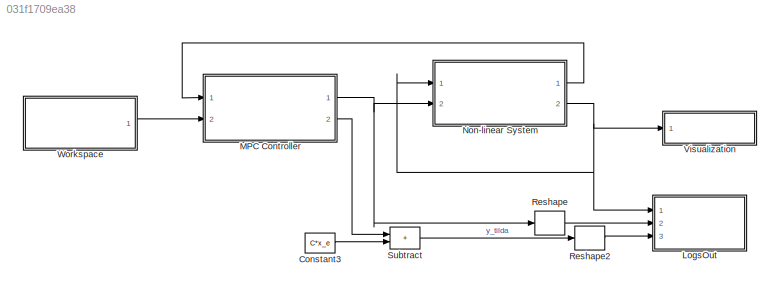
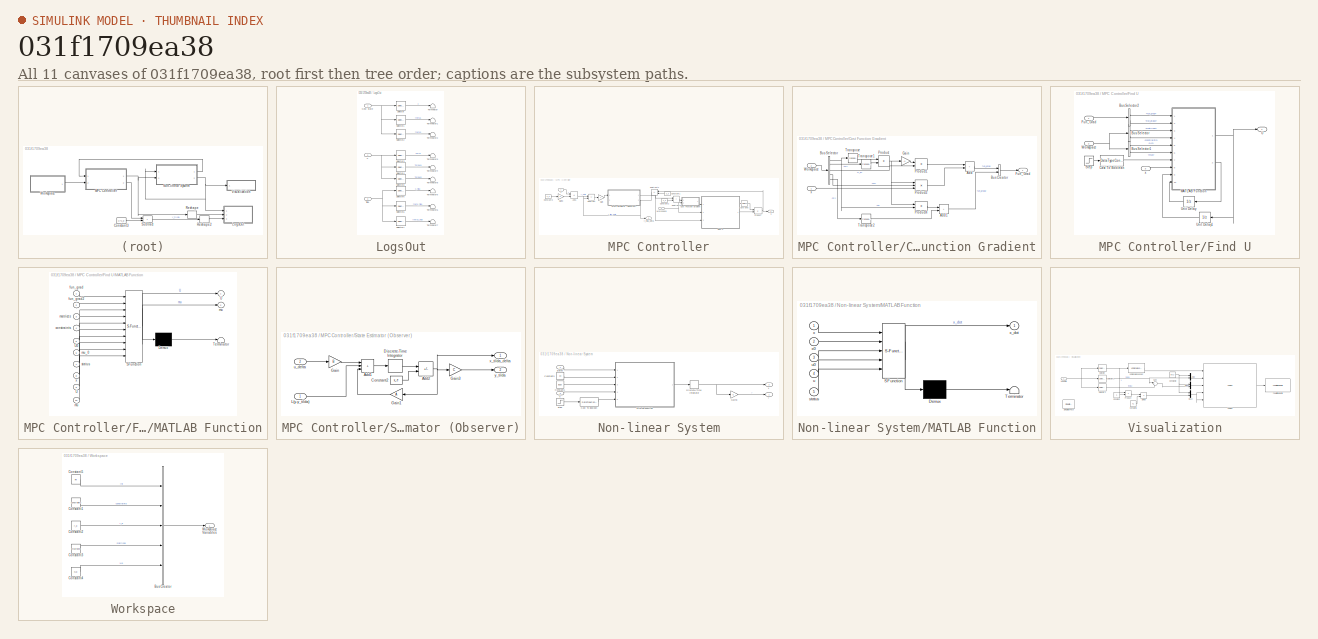
[diagram: thumbnail index - all 11 canvases of the model, root first then tree order]
MODEL slx_031f1709ea38
KIND model
CONFIG AbsTol = auto
CONFIG EnableMultiTasking = off
CONFIG FixedStep = h
CONFIG MaxStep = auto
CONFIG MinStep = auto
CONFIG RelTol = 1e-3
CONFIG SampleTimeConstraint = Unconstrained
CONFIG SolverName = FixedStepDiscrete
CONFIG StartTime = 0.0
CONFIG StopTime = 10.0
BLOCK [Constant] Constant3
  Value = C*x_e
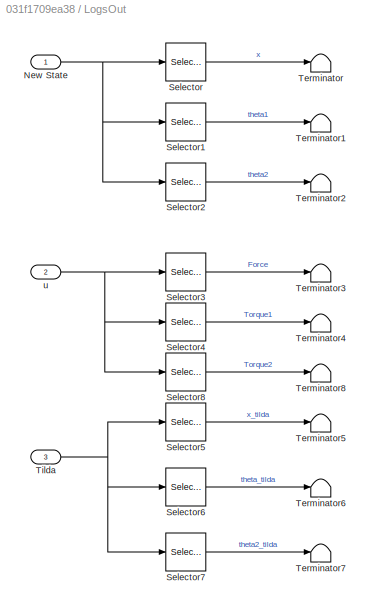
BLOCK [SubSystem] LogsOut
  Ports = [3]
  RequestExecContextInheritance = off
BLOCK [Inport] LogsOut/New State
BLOCK [Selector] LogsOut/Selector
  IndexOptions = Index vector (dialog)
  Indices = 1
  InputPortWidth = 6
  OutputSizes = 1
  Ports = [1, 1]
BLOCK [Selector] LogsOut/Selector1
  IndexOptions = Index vector (dialog)
  Indices = 2
  InputPortWidth = 6
  OutputSizes = 1
  Ports = [1, 1]
BLOCK [Selector] LogsOut/Selector2
  IndexOptions = Index vector (dialog)
  Indices = 3
  InputPortWidth = 6
  OutputSizes = 1
  Ports = [1, 1]
BLOCK [Selector] LogsOut/Selector3
  IndexOptions = Index vector (dialog)
  Indices = 1
  InputPortWidth = 3
  OutputSizes = 1
  Ports = [1, 1]
BLOCK [Selector] LogsOut/Selector4
  IndexOptions = Index vector (dialog)
  Indices = 2
  InputPortWidth = 3
  OutputSizes = 1
  Ports = [1, 1]
BLOCK [Selector] LogsOut/Selector5
  IndexOptions = Index vector (dialog)
  Indices = 1
  InputPortWidth = 3
  OutputSizes = 1
  Ports = [1, 1]
BLOCK [Selector] LogsOut/Selector6
  IndexOptions = Index vector (dialog)
  Indices = 2
  InputPortWidth = 3
  OutputSizes = 1
  Ports = [1, 1]
BLOCK [Selector] LogsOut/Selector7
  IndexOptions = Index vector (dialog)
  Indices = 3
  InputPortWidth = 3
  OutputSizes = 1
  Ports = [1, 1]
BLOCK [Selector] LogsOut/Selector8
  IndexOptions = Index vector (dialog)
  Indices = 3
  InputPortWidth = 3
  OutputSizes = 1
  Ports = [1, 1]
BLOCK [Terminator] LogsOut/Terminator
BLOCK [Terminator] LogsOut/Terminator1
BLOCK [Terminator] LogsOut/Terminator2
BLOCK [Terminator] LogsOut/Terminator3
BLOCK [Terminator] LogsOut/Terminator4
BLOCK [Terminator] LogsOut/Terminator5
BLOCK [Terminator] LogsOut/Terminator6
BLOCK [Terminator] LogsOut/Terminator7
BLOCK [Terminator] LogsOut/Terminator8
BLOCK [Inport] LogsOut/Tilda
  Port = 3
BLOCK [Inport] LogsOut/u
  Port = 2
BLOCK [SubSystem] MPC Controller
  Ports = [2, 2]
  RequestExecContextInheritance = off
BLOCK [Sum] MPC Controller/Add1
  IconShape = rectangular
  Inputs = +-
  Ports = [2, 1]
BLOCK [Constant] MPC Controller/Constant1
  Value = u_e
BLOCK [Constant] MPC Controller/Constant2
  Value = x_e
BLOCK [Constant] MPC Controller/Constant3
  Value = x_e
BLOCK [SubSystem] MPC Controller/Cost Function Gradient
  Ports = [2, 1]
  RequestExecContextInheritance = off
BLOCK [Sum] MPC Controller/Cost Function Gradient/Add
  IconShape = rectangular
  Ports = [2, 1]
BLOCK [Sum] MPC Controller/Cost Function Gradient/Add1
  IconShape = rectangular
  Ports = [2, 1]
BLOCK [BusCreator] MPC Controller/Cost Function Gradient/Bus Creator
  DisplayOption = bar
  InheritFromInputs = on
  Inputs = 2
  Ports = [2, 1]
BLOCK [BusSelector] MPC Controller/Cost Function Gradient/Bus Selector
  OutputSignals = matrices.Z,matrices.Q,r_p,matrices.W,matrices.R
  Ports = [1, 5]
BLOCK [Outport] MPC Controller/Cost Function Gradient/Fun_Grad
BLOCK [Gain] MPC Controller/Cost Function Gradient/Gain
  Gain = -1
BLOCK [Product] MPC Controller/Cost Function Gradient/Product
  Multiplication = Matrix(*)
  Ports = [2, 1]
BLOCK [Product] MPC Controller/Cost Function Gradient/Product1
  Multiplication = Matrix(*)
  Ports = [2, 1]
BLOCK [Product] MPC Controller/Cost Function Gradient/Product2
  Inputs = 3
  Multiplication = Matrix(*)
  Ports = [3, 1]
BLOCK [Product] MPC Controller/Cost Function Gradient/Product4
  Multiplication = Matrix(*)
  Ports = [2, 1]
BLOCK [Math] MPC Controller/Cost Function Gradient/Transpose
  Operator = transpose
  Ports = [1, 1]
BLOCK [Math] MPC Controller/Cost Function Gradient/Transpose1
  Operator = transpose
  Ports = [1, 1]
BLOCK [Math] MPC Controller/Cost Function Gradient/Transpose2
  Operator = transpose
  Ports = [1, 1]
BLOCK [Inport] MPC Controller/Cost Function Gradient/Workspace
  Port = 2
BLOCK [Inport] MPC Controller/Cost Function Gradient/x
BLOCK [SubSystem] MPC Controller/Find U
  Ports = [3, 1]
  RequestExecContextInheritance = off
BLOCK [BusSelector] MPC Controller/Find U/Bus Selector
  OutputSignals = matrices,constraints
  Ports = [1, 2]
BLOCK [BusSelector] MPC Controller/Find U/Bus Selector1
  OutputSignals = int.U0,int.mu0
  Ports = [1, 2]
BLOCK [BusSelector] MPC Controller/Find U/Bus Selector2
  OutputSignals = fun_grad,fun_grad2
  Ports = [1, 2]
BLOCK [DataTypeConversion] MPC Controller/Find U/Cast To Boolean
  OutDataTypeStr = boolean
  RndMeth = Floor
  SaturateOnIntegerOverflow = off
BLOCK [Inport] MPC Controller/Find U/Fun_Grad
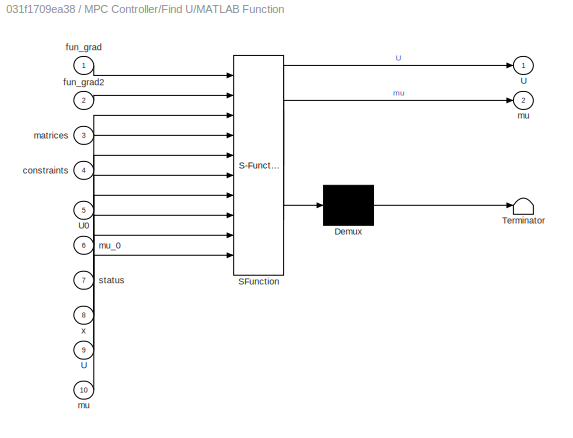
BLOCK [SubSystem] MPC Controller/Find U/MATLAB Function
  ErrorFcn = Stateflow.Translate.translate
  PermitHierarchicalResolution = ExplicitOnly
  Ports = [10, 2]
  RequestExecContextInheritance = off
  SFBlockType = MATLAB Function
  TreatAsAtomicUnit = on
BLOCK [Demux] MPC Controller/Find U/MATLAB Function/ Demux 
  Outputs = 1
  Ports = [1, 1]
BLOCK [S-Function] MPC Controller/Find U/MATLAB Function/ SFunction 
  EnableBusSupport = on
  FunctionName = sf_sfun
  PortCounts = [10 3]
  Ports = [10, 3]
  SFcnIsStateOwnerBlock = off
  SFunctionDeploymentMode = off
  Tag = Stateflow S-Function 1
BLOCK [Terminator] MPC Controller/Find U/MATLAB Function/ Terminator 
BLOCK [Outport] MPC Controller/Find U/MATLAB Function/U
BLOCK [Inport] MPC Controller/Find U/MATLAB Function/U 
  Port = 9
BLOCK [Inport] MPC Controller/Find U/MATLAB Function/U0
  Port = 5
BLOCK [Inport] MPC Controller/Find U/MATLAB Function/constraints
  Port = 4
BLOCK [Inport] MPC Controller/Find U/MATLAB Function/fun_grad
BLOCK [Inport] MPC Controller/Find U/MATLAB Function/fun_grad2
  Port = 2
BLOCK [Inport] MPC Controller/Find U/MATLAB Function/matrices
  Port = 3
BLOCK [Outport] MPC Controller/Find U/MATLAB Function/mu
  Port = 2
BLOCK [Inport] MPC Controller/Find U/MATLAB Function/mu 
  Port = 10
BLOCK [Inport] MPC Controller/Find U/MATLAB Function/mu_0
  Port = 6
BLOCK [Inport] MPC Controller/Find U/MATLAB Function/status
  Port = 7
BLOCK [Inport] MPC Controller/Find U/MATLAB Function/x
  Port = 8
BLOCK [Step] MPC Controller/Find U/Step
  SampleTime = 0
  Time = h-0.001
BLOCK [Outport] MPC Controller/Find U/U
BLOCK [UnitDelay] MPC Controller/Find U/Unit Delay
  HasFrameUpgradeWarning = on
  InitialCondition = int.mu0
  SampleTime = -1
BLOCK [UnitDelay] MPC Controller/Find U/Unit Delay1
  HasFrameUpgradeWarning = on
  InitialCondition = int.U0
  SampleTime = -1
BLOCK [Inport] MPC Controller/Find U/Workspace
  Port = 2
BLOCK [Inport] MPC Controller/Find U/x
  Port = 3
BLOCK [Gain] MPC Controller/Gain
  Gain = L
  Multiplication = Matrix(K*u)
BLOCK [Gain] MPC Controller/Gain3
  Gain = C
  Multiplication = Matrix(K*u)
BLOCK [Product] MPC Controller/Product
  Multiplication = Matrix(*)
  OutDataTypeStr = Inherit: Inherit via back propagation
  Ports = [2, 1]
BLOCK [SubSystem] MPC Controller/State Estimator (Observer)
  PortSchema = {"entries":[{"content":{"sides":[{"content":{"connectorIds":["In1"]},"type":"ConnectorPlacement.EquallySpacedRectSide","uuid":"57453572-00db-41c9-97df-639cc5f0b98d"},{"content":{"connectorIds":["In2","Out1","Out2"],"side":"RIGHT"},"type":"ConnectorPlacement.EquallySpacedRectSide","uuid":"3b8eab05-1f6d-4087-8816-503eb36a27cc"},{"content":{"connectorIds":[],"side":"TOP"},"type":"ConnectorPlacement.E...<+253ch>
  Ports = [2, 2]
  RequestExecContextInheritance = off
BLOCK [Sum] MPC Controller/State Estimator (Observer)/Add1
  IconShape = rectangular
  Inputs = +++
  Ports = [3, 1]
BLOCK [Sum] MPC Controller/State Estimator (Observer)/Add2
  IconShape = rectangular
  Inputs = +-
  Ports = [2, 1]
BLOCK [Constant] MPC Controller/State Estimator (Observer)/Constant2
  Value = x_e
BLOCK [DiscreteIntegrator] MPC Controller/State Estimator (Observer)/Discrete-Time Integrator
  ICPrevOutput = DiscIntNeverNeededParam
  ICPrevScaledInput = DiscIntNeverNeededParam
  InitialCondition = [x0.x;x0.theta1;x0.theta2;x0.x_dot;x0.theta1_dot;x0.theta2_dot]
  InitialConditionSetting = Auto
  Ports = [1, 1]
  SampleTime = h
BLOCK [Gain] MPC Controller/State Estimator (Observer)/Gain
  Gain = B
  Multiplication = Matrix(K*u)
BLOCK [Gain] MPC Controller/State Estimator (Observer)/Gain1
  Gain = A
  Multiplication = Matrix(K*u)
BLOCK [Gain] MPC Controller/State Estimator (Observer)/Gain3
  Gain = C
  Multiplication = Matrix(K*u)
BLOCK [Inport] MPC Controller/State Estimator (Observer)/L(y-y_tilda)
BLOCK [Inport] MPC Controller/State Estimator (Observer)/u_delta
  Port = 2
BLOCK [Outport] MPC Controller/State Estimator (Observer)/x_tilda_delta
BLOCK [Outport] MPC Controller/State Estimator (Observer)/y_tilda
  Port = 2
BLOCK [Sum] MPC Controller/Subtract
  IconShape = rectangular
  Inputs = +-
  Ports = [2, 1]
BLOCK [Sum] MPC Controller/Subtract1
  IconShape = rectangular
  Inputs = +-
  Ports = [2, 1]
BLOCK [Sum] MPC Controller/Subtract2
  IconShape = rectangular
  Ports = [2, 1]
BLOCK [Inport] MPC Controller/Workspace
  Port = 2
BLOCK [Constant] MPC Controller/[Eye one]
  Value = [eye(m) zeros(m,m*Np-m)]
  VectorParams1D = off
BLOCK [Outport] MPC Controller/u
BLOCK [Inport] MPC Controller/y
BLOCK [Outport] MPC Controller/y_tilda_delta
  Port = 2
BLOCK [SubSystem] Non-linear System
  Ports = [2, 2]
  RequestExecContextInheritance = off
BLOCK [DataTypeConversion] Non-linear System/Cast To Boolean
  OutDataTypeStr = boolean
  RndMeth = Floor
  SaturateOnIntegerOverflow = off
BLOCK [Constant] Non-linear System/Constant1
  Value = [0;0;0]
  VectorParams1D = off
BLOCK [Constant] Non-linear System/Constant3
  OutDataTypeStr = Bus: State_bus
  Value = x0
  VectorParams1D = off
BLOCK [DiscreteIntegrator] Non-linear System/Discrete-Time Integrator
  ICPrevOutput = DiscIntNeverNeededParam
  ICPrevScaledInput = DiscIntNeverNeededParam
  InitialCondition = [x0.x;x0.theta1;x0.theta2;x0.x_dot;x0.theta1_dot;x0.theta2_dot]
  InitialConditionSetting = Auto
  Ports = [1, 1]
  SampleTime = h
BLOCK [Gain] Non-linear System/Gain3
  Gain = C
  Multiplication = Matrix(K*u)
BLOCK [SubSystem] Non-linear System/MATLAB Function
  ErrorFcn = Stateflow.Translate.translate
  PermitHierarchicalResolution = ExplicitOnly
  Ports = [5, 1]
  RequestExecContextInheritance = off
  SFBlockType = MATLAB Function
  TreatAsAtomicUnit = on
BLOCK [Demux] Non-linear System/MATLAB Function/ Demux 
  Outputs = 1
  Ports = [1, 1]
BLOCK [S-Function] Non-linear System/MATLAB Function/ SFunction 
  EnableBusSupport = on
  FunctionName = sf_sfun
  PortCounts = [5 2]
  Ports = [5, 2]
  SFcnIsStateOwnerBlock = off
  SFunctionDeploymentMode = off
  Tag = Stateflow S-Function 2
BLOCK [Terminator] Non-linear System/MATLAB Function/ Terminator 
BLOCK [Inport] Non-linear System/MATLAB Function/status
  Port = 5
BLOCK [Inport] Non-linear System/MATLAB Function/u
  Port = 4
BLOCK [Inport] Non-linear System/MATLAB Function/u0
  Port = 3
BLOCK [Inport] Non-linear System/MATLAB Function/x
BLOCK [Inport] Non-linear System/MATLAB Function/x0
  Port = 2
BLOCK [Outport] Non-linear System/MATLAB Function/x_dot
BLOCK [Inport] Non-linear System/States
BLOCK [Step] Non-linear System/Step
  SampleTime = 0
  Time = h
BLOCK [Inport] Non-linear System/u
  Port = 2
BLOCK [Outport] Non-linear System/x
  Port = 2
BLOCK [Outport] Non-linear System/y
BLOCK [Reshape] Reshape
  Ports = [1, 1]
BLOCK [Reshape] Reshape2
  Ports = [1, 1]
BLOCK [Sum] Subtract
  IconShape = rectangular
  Ports = [2, 1]
BLOCK [SubSystem] Visualization
  Ports = [1]
  RequestExecContextInheritance = off
BLOCK [Constant] Visualization/Constant
  Value = -1
BLOCK [Constant] Visualization/Constant1
  Value = 0.1
BLOCK [Constant] Visualization/Constant2
  Value = [0 0 1]
BLOCK [Product] Visualization/Divide
  Inputs = */
  Ports = [2, 1]
BLOCK [Mux] Visualization/Mux
  DisplayOption = bar
  Inputs = 2
  Ports = [2, 1]
BLOCK [Mux] Visualization/Mux1
  DisplayOption = bar
  Inputs = 2
  Ports = [2, 1]
BLOCK [Mux] Visualization/Mux2
  DisplayOption = bar
  Inputs = 2
  Ports = [2, 1]
BLOCK [Inport] Visualization/New State
BLOCK [Product] Visualization/Product
  Ports = [2, 1]
BLOCK [Selector] Visualization/Selector
  IndexOptions = Index vector (dialog)
  Indices = 1
  InputPortWidth = 6
  OutputSizes = 1
  Ports = [1, 1]
BLOCK [Selector] Visualization/Selector1
  IndexOptions = Index vector (dialog)
  Indices = 2
  InputPortWidth = 6
  OutputSizes = 1
  Ports = [1, 1]
BLOCK [Selector] Visualization/Selector2
  IndexOptions = Index vector (dialog)
  Indices = 3
  InputPortWidth = 6
  OutputSizes = 1
  Ports = [1, 1]
BLOCK [Reference] Visualization/Simulation Pace  REF=aerolibanimutils/Simulation Pace
  AttributesFormatString = %<SleepMode>\n%<SimulationPace> sec/sec
  Commented = on
  Ports = []
  SourceBlock = aerolibanimutils/Simulation Pace
  SourceProductBaseCode = AE
  SourceType = Simulation Pace
BLOCK [Sum] Visualization/Sum
  Inputs = |+-
  Ports = [2, 1]
BLOCK [Reference] Visualization/To Multimedia File  REF=dspvision/To Multimedia File
  Ports = [1]
  SourceBlock = dspvision/To Multimedia File
  SourceProductBaseCode = DS,HW,VP
  SourceType = To Multimedia File
BLOCK [Reference] Visualization/VR Signal Expander  REF=vrlib/VR Signal Expander
  Ports = [1, 1]
  SourceBlock = vrlib/VR Signal Expander
  SourceProductBaseCode = SL
  SourceType = VR Signal Expander
BLOCK [Reference] Visualization/VR Sink  REF=vrlib/VR Sink
  InstantiateOnLoad = on
  Ports = [5, 1]
  SourceBlock = vrlib/VR Sink
  SourceProductBaseCode = SL
  SourceType = Virtual Reality Sink
BLOCK [SubSystem] Workspace
  Ports = [0, 1]
  RequestExecContextInheritance = off
BLOCK [BusCreator] Workspace/Bus Creator
  DisplayOption = bar
  InheritFromInputs = on
  Inputs = 5
  Ports = [5, 1]
BLOCK [Constant] Workspace/Constant1
  OutDataTypeStr = Bus: Contraint_bus
  Value = constraints
  VectorParams1D = off
BLOCK [Constant] Workspace/Constant2
  Value = r_p
BLOCK [Constant] Workspace/Constant3
  OutDataTypeStr = Bus: Matrix_bus
  Value = matrices
  VectorParams1D = off
BLOCK [Constant] Workspace/Constant4
  Value = Np
  VectorParams1D = off
BLOCK [Constant] Workspace/Constant5
  OutDataTypeStr = Bus: Initial_bus
  Value = int
  VectorParams1D = off
BLOCK [Outport] Workspace/Workspace Variables
LINE Constant3:1 -> Subtract:2
NET LogsOut/New State:1 -> LogsOut/Selector1:1, LogsOut/Selector2:1, LogsOut/Selector:1
LINE LogsOut/Selector1:1 -> LogsOut/Terminator1:1
LINE LogsOut/Selector2:1 -> LogsOut/Terminator2:1
LINE LogsOut/Selector3:1 -> LogsOut/Terminator3:1
LINE LogsOut/Selector4:1 -> LogsOut/Terminator4:1
LINE LogsOut/Selector5:1 -> LogsOut/Terminator5:1
LINE LogsOut/Selector6:1 -> LogsOut/Terminator6:1
LINE LogsOut/Selector7:1 -> LogsOut/Terminator7:1
LINE LogsOut/Selector8:1 -> LogsOut/Terminator8:1
LINE LogsOut/Selector:1 -> LogsOut/Terminator:1
NET LogsOut/Tilda:1 -> LogsOut/Selector5:1, LogsOut/Selector6:1, LogsOut/Selector7:1
NET LogsOut/u:1 -> LogsOut/Selector3:1, LogsOut/Selector4:1, LogsOut/Selector8:1
LINE MPC Controller/Add1:1 -> MPC Controller/Subtract:1
LINE MPC Controller/Constant1:1 -> MPC Controller/Subtract1:2
LINE MPC Controller/Constant2:1 -> MPC Controller/Subtract2:2
LINE MPC Controller/Constant3:1 -> MPC Controller/Gain3:1
LINE MPC Controller/Cost Function Gradient/Add1:1 -> MPC Controller/Cost Function Gradient/Bus Creator:2
LINE MPC Controller/Cost Function Gradient/Add:1 -> MPC Controller/Cost Function Gradient/Bus Creator:1
LINE MPC Controller/Cost Function Gradient/Bus Creator:1 -> MPC Controller/Cost Function Gradient/Fun_Grad:1
NET MPC Controller/Cost Function Gradient/Bus Selector:1 -> MPC Controller/Cost Function Gradient/Product4:2, MPC Controller/Cost Function Gradient/Transpose:1
LINE MPC Controller/Cost Function Gradient/Bus Selector:2 -> MPC Controller/Cost Function Gradient/Transpose1:1
LINE MPC Controller/Cost Function Gradient/Bus Selector:3 -> MPC Controller/Cost Function Gradient/Product1:2
LINE MPC Controller/Cost Function Gradient/Bus Selector:4 -> MPC Controller/Cost Function Gradient/Product2:2
LINE MPC Controller/Cost Function Gradient/Bus Selector:5 -> MPC Controller/Cost Function Gradient/Transpose2:1
LINE MPC Controller/Cost Function Gradient/Gain:1 -> MPC Controller/Cost Function Gradient/Product1:1
LINE MPC Controller/Cost Function Gradient/Product1:1 -> MPC Controller/Cost Function Gradient/Add:1
LINE MPC Controller/Cost Function Gradient/Product2:1 -> MPC Controller/Cost Function Gradient/Add:2
LINE MPC Controller/Cost Function Gradient/Product4:1 -> MPC Controller/Cost Function Gradient/Add1:1
NET MPC Controller/Cost Function Gradient/Product:1 -> MPC Controller/Cost Function Gradient/Gain:1, MPC Controller/Cost Function Gradient/Product2:1, MPC Controller/Cost Function Gradient/Product4:1
LINE MPC Controller/Cost Function Gradient/Transpose1:1 -> MPC Controller/Cost Function Gradient/Product:2
LINE MPC Controller/Cost Function Gradient/Transpose2:1 -> MPC Controller/Cost Function Gradient/Add1:2
LINE MPC Controller/Cost Function Gradient/Transpose:1 -> MPC Controller/Cost Function Gradient/Product:1
LINE MPC Controller/Cost Function Gradient/Workspace:1 -> MPC Controller/Cost Function Gradient/Bus Selector:1
LINE MPC Controller/Cost Function Gradient/x:1 -> MPC Controller/Cost Function Gradient/Product2:3
LINE MPC Controller/Cost Function Gradient:1 -> MPC Controller/Find U:1
LINE MPC Controller/Find U/Bus Selector1:1 -> MPC Controller/Find U/MATLAB Function:5
LINE MPC Controller/Find U/Bus Selector1:2 -> MPC Controller/Find U/MATLAB Function:6
LINE MPC Controller/Find U/Bus Selector2:1 -> MPC Controller/Find U/MATLAB Function:1
LINE MPC Controller/Find U/Bus Selector2:2 -> MPC Controller/Find U/MATLAB Function:2
LINE MPC Controller/Find U/Bus Selector:1 -> MPC Controller/Find U/MATLAB Function:3
LINE MPC Controller/Find U/Bus Selector:2 -> MPC Controller/Find U/MATLAB Function:4
LINE MPC Controller/Find U/Cast To Boolean:1 -> MPC Controller/Find U/MATLAB Function:7
LINE MPC Controller/Find U/Fun_Grad:1 -> MPC Controller/Find U/Bus Selector2:1
NET MPC Controller/Find U/MATLAB Function:1 -> MPC Controller/Find U/U:1, MPC Controller/Find U/Unit Delay1:1
LINE MPC Controller/Find U/MATLAB Function:2 -> MPC Controller/Find U/Unit Delay:1
LINE MPC Controller/Find U/Step:1 -> MPC Controller/Find U/Cast To Boolean:1
LINE MPC Controller/Find U/Unit Delay1:1 -> MPC Controller/Find U/MATLAB Function:9
LINE MPC Controller/Find U/Unit Delay:1 -> MPC Controller/Find U/MATLAB Function:10
NET MPC Controller/Find U/Workspace:1 -> MPC Controller/Find U/Bus Selector1:1, MPC Controller/Find U/Bus Selector:1
LINE MPC Controller/Find U/x:1 -> MPC Controller/Find U/MATLAB Function:8
LINE MPC Controller/Find U:1 -> MPC Controller/Product:2
LINE MPC Controller/Gain3:1 -> MPC Controller/Add1:2
LINE MPC Controller/Gain:1 -> MPC Controller/State Estimator (Observer):1
NET MPC Controller/Product:1 -> MPC Controller/Subtract1:1, MPC Controller/u:1
LINE MPC Controller/State Estimator (Observer)/Add1:1 -> MPC Controller/State Estimator (Observer)/Discrete-Time Integrator:1
NET MPC Controller/State Estimator (Observer)/Add2:1 -> MPC Controller/State Estimator (Observer)/Gain1:1, MPC Controller/State Estimator (Observer)/Gain3:1, MPC Controller/State Estimator (Observer)/x_tilda_delta:1
LINE MPC Controller/State Estimator (Observer)/Constant2:1 -> MPC Controller/State Estimator (Observer)/Add2:2
LINE MPC Controller/State Estimator (Observer)/Discrete-Time Integrator:1 -> MPC Controller/State Estimator (Observer)/Add2:1
LINE MPC Controller/State Estimator (Observer)/Gain1:1 -> MPC Controller/State Estimator (Observer)/Add1:3
LINE MPC Controller/State Estimator (Observer)/Gain3:1 -> MPC Controller/State Estimator (Observer)/y_tilda:1
LINE MPC Controller/State Estimator (Observer)/Gain:1 -> MPC Controller/State Estimator (Observer)/Add1:1
LINE MPC Controller/State Estimator (Observer)/L(y-y_tilda):1 -> MPC Controller/State Estimator (Observer)/Add1:2
LINE MPC Controller/State Estimator (Observer)/u_delta:1 -> MPC Controller/State Estimator (Observer)/Gain:1
NET MPC Controller/State Estimator (Observer):1 -> MPC Controller/Find U:3, MPC Controller/Subtract2:1
NET MPC Controller/State Estimator (Observer):2 -> MPC Controller/Subtract:2, MPC Controller/y_tilda_delta:1
LINE MPC Controller/Subtract1:1 -> MPC Controller/State Estimator (Observer):2
LINE MPC Controller/Subtract2:1 -> MPC Controller/Cost Function Gradient:1
LINE MPC Controller/Subtract:1 -> MPC Controller/Gain:1
NET MPC Controller/Workspace:1 -> MPC Controller/Cost Function Gradient:2, MPC Controller/Find U:2
LINE MPC Controller/[Eye one]:1 -> MPC Controller/Product:1
LINE MPC Controller/y:1 -> MPC Controller/Add1:1
NET MPC Controller:1 -> Non-linear System:2, Reshape:1
LINE MPC Controller:2 -> Subtract:1
LINE Non-linear System/Cast To Boolean:1 -> Non-linear System/MATLAB Function:5
LINE Non-linear System/Constant1:1 -> Non-linear System/MATLAB Function:3
LINE Non-linear System/Constant3:1 -> Non-linear System/MATLAB Function:2
NET Non-linear System/Discrete-Time Integrator:1 -> Non-linear System/Gain3:1, Non-linear System/x:1
LINE Non-linear System/Gain3:1 -> Non-linear System/y:1
LINE Non-linear System/MATLAB Function:1 -> Non-linear System/Discrete-Time Integrator:1
LINE Non-linear System/States:1 -> Non-linear System/MATLAB Function:1
LINE Non-linear System/Step:1 -> Non-linear System/Cast To Boolean:1
LINE Non-linear System/u:1 -> Non-linear System/MATLAB Function:4
LINE Non-linear System:1 -> MPC Controller:1
NET Non-linear System:2 -> LogsOut:1, Non-linear System:1, Visualization:1
LINE Reshape2:1 -> LogsOut:3
LINE Reshape:1 -> LogsOut:2
LINE Subtract:1 -> Reshape2:1
LINE Visualization/Constant1:1 -> Visualization/Divide:2
NET Visualization/Constant2:1 -> Visualization/Mux1:1, Visualization/Mux2:1, Visualization/Mux:1
LINE Visualization/Constant:1 -> Visualization/Product:2
LINE Visualization/Divide:1 -> Visualization/Mux2:2
LINE Visualization/Mux1:1 -> Visualization/VR Sink:3
NET Visualization/Mux2:1 -> Visualization/VR Sink:4, Visualization/VR Sink:5
LINE Visualization/Mux:1 -> Visualization/VR Sink:2
NET Visualization/New State:1 -> Visualization/Selector1:1, Visualization/Selector2:1, Visualization/Selector:1
LINE Visualization/Product:1 -> Visualization/Divide:1
NET Visualization/Selector1:1 -> Visualization/Mux:2, Visualization/Sum:1
LINE Visualization/Selector2:1 -> Visualization/Sum:2
NET Visualization/Selector:1 -> Visualization/Product:1, Visualization/VR Signal Expander:1
LINE Visualization/Sum:1 -> Visualization/Mux1:2
LINE Visualization/VR Signal Expander:1 -> Visualization/VR Sink:1
LINE Visualization/VR Sink:1 -> Visualization/To Multimedia File:1
LINE Workspace/Bus Creator:1 -> Workspace/Workspace Variables:1
LINE Workspace/Constant1:1 -> Workspace/Bus Creator:2
LINE Workspace/Constant2:1 -> Workspace/Bus Creator:3
LINE Workspace/Constant3:1 -> Workspace/Bus Creator:4
LINE Workspace/Constant4:1 -> Workspace/Bus Creator:5
LINE Workspace/Constant5:1 -> Workspace/Bus Creator:1
LINE Workspace:1 -> MPC Controller:2
note: NET lines group one-source signal fan-out (src -> all destinations, sorted); 1:1 wires keep LINE
CHART MPC Controller/Find U/MATLAB Function states=1 transitions=1
  STATE_LABEL 'eML_blk_kernel()'
  STATE_LABEL 'SCRIPT:\nfunction [U,mu] = for_loop(fun_grad,fun_grad2,matrices,constraints,U0,mu_0,status,x,U,mu)\n    \n    % Set-Up\n    Dg = [matrices.Z_aug;matrices.S];\n    temp = [-constraints.Y_min + matrices.W*x;\n            constraints.Y_max - matrices.W*x;\n                    matrices.F];\n    alpha = 0.01;\n    beta = 0.01;\n    \n    % Check if initial value\n    if status == true\n        % Do nothing\n    else...<+550ch>'
CHART Non-linear System/MATLAB Function states=1 transitions=1
  STATE_LABEL 'eML_blk_kernel()'
  STATE_LABEL 'SCRIPT:\nfunction x_dot  = Nonlinear_Dynamics(x,x0,u0,u,status)\n    if status == false\n        x2 = x0.theta1;\n        x3 = x0.theta2;\n        x4 = x0.x_dot;\n        x5 = x0.theta1_dot;\n        x6 = x0.theta2_dot;\n        u1 = u0(1);\n        u2 = u0(2);\n        u3 = u0(3);\n    else\n        x2 = x(2);\n        x3 = x(3);\n        x4 = x(4);\n        x5 = x(5);\n        x6 = x(6);\n        u1 = u(1);\n    ...<+1203ch>'
CHART  states=0 transitions=0
CHART  states=0 transitions=0
